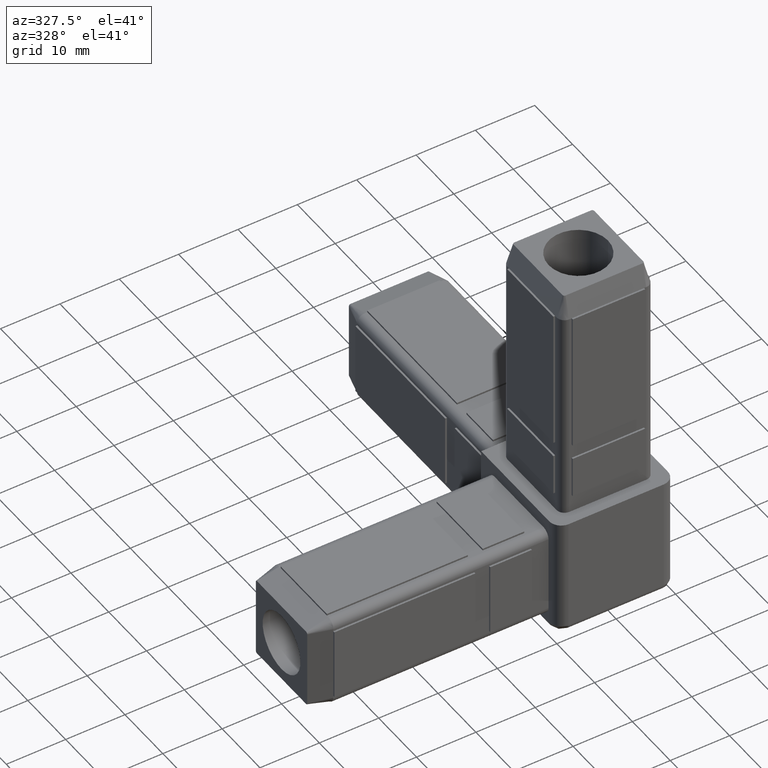
[diagram: clean part render]
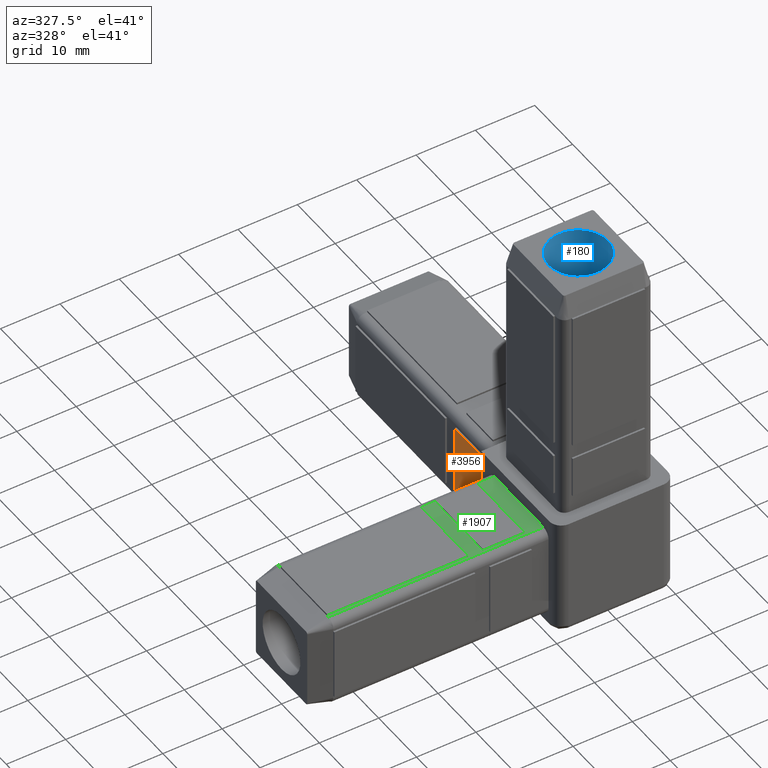
[diagram: same view with three faces highlighted in distinct colors, each labeled with its STEP entity id]
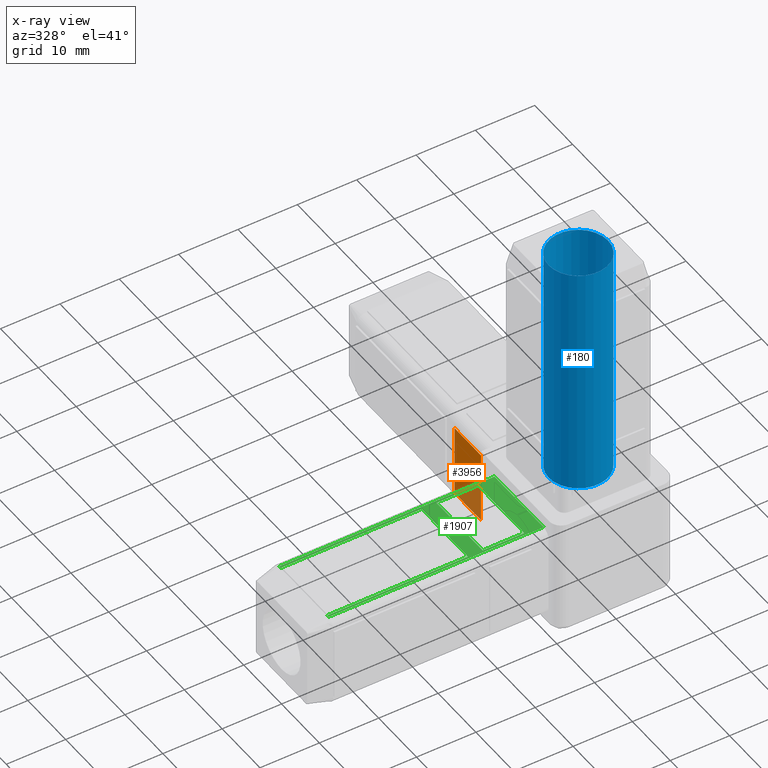
[diagram: x-ray of the same camera — body ghosted, the three highlighted faces saturated]
A machine part, auxiliary view with three faces highlighted in distinct colors.
The next image is the same camera in x-ray (body ghosted, the three faces saturated) — at least one of them is partly hidden behind the body in this view.
Their STEP definitions:

[orange] entity #3956 — the highlighted planar face has unit normal (-1, 0, 0).
#3854=CARTESIAN_POINT('',(1.900000190734886,3.000000000000199,6.100000000000001));
#3855=VERTEX_POINT('',#3854);
#3863=CARTESIAN_POINT('',(1.900000190734886,9.999999999998821,6.100000000000001));
#3864=VERTEX_POINT('',#3863);
#3871=CARTESIAN_POINT('',(1.900000190734886,3.000000000000199,6.100000000000001));
#3872=DIRECTION('',(0.0,1.0,0.0));
#3873=VECTOR('',#3872,6.999999999998622);
#3874=LINE('',#3871,#3873);
#3875=EDGE_CURVE('',#3855,#3864,#3874,.T.);
#3887=CARTESIAN_POINT('',(1.900000190734886,9.999999999998821,-6.099999999999614));
#3888=VERTEX_POINT('',#3887);
#3895=CARTESIAN_POINT('',(1.900000190734886,9.999999999998821,6.100000000000001));
#3896=DIRECTION('',(0.0,0.0,-1.0));
#3897=VECTOR('',#3896,12.199999999999616);
#3898=LINE('',#3895,#3897);
#3899=EDGE_CURVE('',#3864,#3888,#3898,.T.);
#3911=CARTESIAN_POINT('',(1.900000190734886,3.000000000000199,-6.099999999999614));
#3912=VERTEX_POINT('',#3911);
#3919=CARTESIAN_POINT('',(1.900000190734886,9.999999999998821,-6.099999999999614));
#3920=DIRECTION('',(0.0,-1.0,0.0));
#3921=VECTOR('',#3920,6.999999999998622);
#3922=LINE('',#3919,#3921);
#3923=EDGE_CURVE('',#3888,#3912,#3922,.T.);
#3933=CARTESIAN_POINT('',(1.900000190734886,3.000000000000199,-6.099999999999614));
#3934=DIRECTION('',(0.0,0.0,1.0));
#3935=VECTOR('',#3934,12.199999999999616);
#3936=LINE('',#3933,#3935);
#3937=EDGE_CURVE('',#3912,#3855,#3936,.T.);
#3945=CARTESIAN_POINT('',(1.900000190734886,2.299987999954240,-7.320012000047234));
#3946=DIRECTION('',(-1.0,0.0,0.0));
#3947=DIRECTION('',(0.0,0.0,1.0));
#3948=AXIS2_PLACEMENT_3D('',#3945,#3946,#3947);
#3949=PLANE('',#3948);
#3950=ORIENTED_EDGE('',*,*,#3875,.T.);
#3951=ORIENTED_EDGE('',*,*,#3899,.T.);
#3952=ORIENTED_EDGE('',*,*,#3923,.T.);
#3953=ORIENTED_EDGE('',*,*,#3937,.T.);
#3954=EDGE_LOOP('',(#3950,#3951,#3952,#3953));
#3955=FACE_OUTER_BOUND('',#3954,.T.);
#3956=ADVANCED_FACE('',(#3955),#3949,.T.);

[blue] entity #180 — the highlighted cylindrical surface (bore or boss wall) has radius 5 mm, axis along (0, 0, 1).
#130=CARTESIAN_POINT('',(10.0,-10.000000000000099,49.999993443258447));
#131=DIRECTION('',(0.0,0.0,1.0));
#132=DIRECTION('',(1.0,0.0,0.0));
#133=AXIS2_PLACEMENT_3D('',#130,#131,#132);
#134=CYLINDRICAL_SURFACE('',#133,5.0);
#135=CARTESIAN_POINT('',(5.0,-10.000000000000099,10.0));
#136=VERTEX_POINT('',#135);
#137=CARTESIAN_POINT('',(15.0,-10.000000000000099,10.0));
#138=VERTEX_POINT('',#137);
#139=CARTESIAN_POINT('',(10.0,-10.000000000000099,10.0));
#140=DIRECTION('',(0.0,0.0,1.0));
#141=DIRECTION('',(1.0,0.0,0.0));
#142=AXIS2_PLACEMENT_3D('',#139,#140,#141);
#143=CIRCLE('',#142,5.0);
#144=EDGE_CURVE('',#136,#138,#143,.T.);
#145=ORIENTED_EDGE('',*,*,#144,.F.);
#146=CARTESIAN_POINT('',(10.0,-10.000000000000099,10.0));
#147=DIRECTION('',(0.0,0.0,1.0));
#148=DIRECTION('',(1.0,0.0,0.0));
#149=AXIS2_PLACEMENT_3D('',#146,#147,#148);
#150=CIRCLE('',#149,5.0);
#151=EDGE_CURVE('',#138,#136,#150,.T.);
#152=ORIENTED_EDGE('',*,*,#151,.F.);
#153=CARTESIAN_POINT('',(15.0,-10.000000000000099,49.999993443258447));
#154=VERTEX_POINT('',#153);
#155=CARTESIAN_POINT('',(15.0,-10.000000000000099,49.999993443258447));
#156=DIRECTION('',(0.0,0.0,-1.0));
#157=VECTOR('',#156,39.999993443258447);
#158=LINE('',#155,#157);
#159=EDGE_CURVE('',#154,#138,#158,.T.);
#160=ORIENTED_EDGE('',*,*,#159,.F.);
#161=CARTESIAN_POINT('',(5.0,-10.000000000000099,49.999993443258447));
#162=VERTEX_POINT('',#161);
#163=CARTESIAN_POINT('',(10.0,-10.000000000000099,49.999993443258447));
#164=DIRECTION('',(0.0,0.0,1.0));
#165=DIRECTION('',(1.0,0.0,0.0));
#166=AXIS2_PLACEMENT_3D('',#163,#164,#165);
#167=CIRCLE('',#166,5.0);
#168=EDGE_CURVE('',#154,#162,#167,.T.);
#169=ORIENTED_EDGE('',*,*,#168,.T.);
#170=CARTESIAN_POINT('',(10.0,-10.000000000000099,49.999993443258447));
#171=DIRECTION('',(0.0,0.0,1.0));
#172=DIRECTION('',(1.0,0.0,0.0));
#173=AXIS2_PLACEMENT_3D('',#170,#171,#172);
#174=CIRCLE('',#173,5.0);
#175=EDGE_CURVE('',#162,#154,#174,.T.);
#176=ORIENTED_EDGE('',*,*,#175,.T.);
#177=ORIENTED_EDGE('',*,*,#159,.T.);
#178=EDGE_LOOP('',(#145,#152,#160,#169,#176,#177));
#179=FACE_OUTER_BOUND('',#178,.T.);
#180=ADVANCED_FACE('',(#179),#134,.F.);

[green] entity #1907 — the highlighted planar face has unit normal (0, -0, 1).
#1380=CARTESIAN_POINT('',(-36.250026683031933,-16.492702063284895,7.799999999995364));
#1381=VERTEX_POINT('',#1380);
#1786=CARTESIAN_POINT('',(-36.250026683031933,-3.507297936831336,7.800000000000295));
#1787=VERTEX_POINT('',#1786);
#1795=CARTESIAN_POINT('',(0.0,-3.507297936831336,7.800000000000295));
#1796=VERTEX_POINT('',#1795);
#1797=CARTESIAN_POINT('',(0.0,-3.507297936831336,7.800000000000295));
#1798=DIRECTION('',(-1.0,0.0,0.0));
#1799=VECTOR('',#1798,36.250026683031933);
#1800=LINE('',#1797,#1799);
#1801=EDGE_CURVE('',#1796,#1787,#1800,.T.);
#1813=CARTESIAN_POINT('',(0.0,-16.492702063284895,7.799999999995364));
#1814=DIRECTION('',(0.0,-3.797469E-013,1.0));
#1815=DIRECTION('',(0.0,1.0,3.797469E-013));
#1816=AXIS2_PLACEMENT_3D('',#1813,#1814,#1815);
#1817=PLANE('',#1816);
#1818=ORIENTED_EDGE('',*,*,#1801,.T.);
#1819=CARTESIAN_POINT('',(-36.250026683031933,-3.900000000000702,7.799999999991152));
#1820=VERTEX_POINT('',#1819);
#1821=CARTESIAN_POINT('',(-36.250026683031933,-3.900000000000702,7.800000000000146));
#1822=DIRECTION('',(0.0,1.0,3.799674E-013));
#1823=VECTOR('',#1822,0.392702063169367);
#1824=LINE('',#1821,#1823);
#1825=EDGE_CURVE('',#1820,#1787,#1824,.T.);
#1826=ORIENTED_EDGE('',*,*,#1825,.F.);
#1827=CARTESIAN_POINT('',(-12.500000000000000,-3.900000000000702,7.799999999991152));
#1828=VERTEX_POINT('',#1827);
#1829=CARTESIAN_POINT('',(-12.500000000000000,-3.900000000000702,7.799999999991152));
#1830=DIRECTION('',(-1.0,0.0,0.0));
#1831=VECTOR('',#1830,23.750026683031933);
#1832=LINE('',#1829,#1831);
#1833=EDGE_CURVE('',#1828,#1820,#1832,.T.);
#1834=ORIENTED_EDGE('',*,*,#1833,.F.);
#1835=CARTESIAN_POINT('',(-12.500000000000000,-16.100000000000406,7.799999999991154));
#1836=VERTEX_POINT('',#1835);
#1837=CARTESIAN_POINT('',(-12.500000000000000,-16.100000000000406,7.799999999991154));
#1838=DIRECTION('',(0.0,1.0,0.0));
#1839=VECTOR('',#1838,12.199999999999704);
#1840=LINE('',#1837,#1839);
#1841=EDGE_CURVE('',#1836,#1828,#1840,.T.);
#1842=ORIENTED_EDGE('',*,*,#1841,.F.);
#1843=CARTESIAN_POINT('',(-36.250026683031933,-16.100000000000406,7.799999999991154));
#1844=VERTEX_POINT('',#1843);
#1845=CARTESIAN_POINT('',(-36.250026683031933,-16.100000000000406,7.799999999991154));
#1846=DIRECTION('',(1.0,0.0,0.0));
#1847=VECTOR('',#1846,23.750026683031933);
#1848=LINE('',#1845,#1847);
#1849=EDGE_CURVE('',#1844,#1836,#1848,.T.);
#1850=ORIENTED_EDGE('',*,*,#1849,.F.);
#1851=CARTESIAN_POINT('',(-36.250026683031933,-16.492702063284895,7.799999999995364));
#1852=DIRECTION('',(0.0,1.0,3.799674E-013));
#1853=VECTOR('',#1852,0.392702063284489);
#1854=LINE('',#1851,#1853);
#1855=EDGE_CURVE('',#1381,#1844,#1854,.T.);
#1856=ORIENTED_EDGE('',*,*,#1855,.F.);
#1857=CARTESIAN_POINT('',(0.0,-16.492702063284895,7.799999999995364));
#1858=VERTEX_POINT('',#1857);
#1859=CARTESIAN_POINT('',(0.0,-16.492702063284895,7.799999999995364));
#1860=DIRECTION('',(-1.0,0.0,0.0));
#1861=VECTOR('',#1860,36.250026683031933);
#1862=LINE('',#1859,#1861);
#1863=EDGE_CURVE('',#1858,#1381,#1862,.T.);
#1864=ORIENTED_EDGE('',*,*,#1863,.F.);
#1865=CARTESIAN_POINT('',(0.0,-16.492702063284892,7.799999999995364));
#1866=DIRECTION('',(0.0,1.0,3.797469E-013));
#1867=VECTOR('',#1866,12.985404126453556);
#1868=LINE('',#1865,#1867);
#1869=EDGE_CURVE('',#1858,#1796,#1868,.T.);
#1870=ORIENTED_EDGE('',*,*,#1869,.T.);
#1871=EDGE_LOOP('',(#1818,#1826,#1834,#1842,#1850,#1856,#1864,#1870));
#1872=FACE_OUTER_BOUND('',#1871,.T.);
#1873=CARTESIAN_POINT('',(-9.999999999999886,-16.100000000000023,7.799999999991154));
#1874=VERTEX_POINT('',#1873);
#1875=CARTESIAN_POINT('',(-3.000000000001364,-16.100000000000023,7.799999999991154));
#1876=VERTEX_POINT('',#1875);
#1877=CARTESIAN_POINT('',(-9.999999999999886,-16.100000000000023,7.799999999991154));
#1878=DIRECTION('',(1.0,0.0,0.0));
#1879=VECTOR('',#1878,6.999999999998522);
#1880=LINE('',#1877,#1879);
#1881=EDGE_CURVE('',#1874,#1876,#1880,.T.);
#1882=ORIENTED_EDGE('',*,*,#1881,.F.);
#1883=CARTESIAN_POINT('',(-9.999999999999886,-3.900000000000389,7.799999999991152));
#1884=VERTEX_POINT('',#1883);
#1885=CARTESIAN_POINT('',(-9.999999999999886,-3.900000000000389,7.799999999991152));
#1886=DIRECTION('',(0.0,-1.0,0.0));
#1887=VECTOR('',#1886,12.199999999999633);
#1888=LINE('',#1885,#1887);
#1889=EDGE_CURVE('',#1884,#1874,#1888,.T.);
#1890=ORIENTED_EDGE('',*,*,#1889,.F.);
#1891=CARTESIAN_POINT('',(-3.000000000001364,-3.900000000000389,7.799999999991152));
#1892=VERTEX_POINT('',#1891);
#1893=CARTESIAN_POINT('',(-3.000000000001364,-3.900000000000389,7.799999999991152));
#1894=DIRECTION('',(-1.0,0.0,0.0));
#1895=VECTOR('',#1894,6.999999999998522);
#1896=LINE('',#1893,#1895);
#1897=EDGE_CURVE('',#1892,#1884,#1896,.T.);
#1898=ORIENTED_EDGE('',*,*,#1897,.F.);
#1899=CARTESIAN_POINT('',(-3.000000000001364,-16.100000000000023,7.799999999991154));
#1900=DIRECTION('',(0.0,1.0,0.0));
#1901=VECTOR('',#1900,12.199999999999633);
#1902=LINE('',#1899,#1901);
#1903=EDGE_CURVE('',#1876,#1892,#1902,.T.);
#1904=ORIENTED_EDGE('',*,*,#1903,.F.);
#1905=EDGE_LOOP('',(#1882,#1890,#1898,#1904));
#1906=FACE_BOUND('',#1905,.T.);
#1907=ADVANCED_FACE('',(#1872,#1906),#1817,.T.);